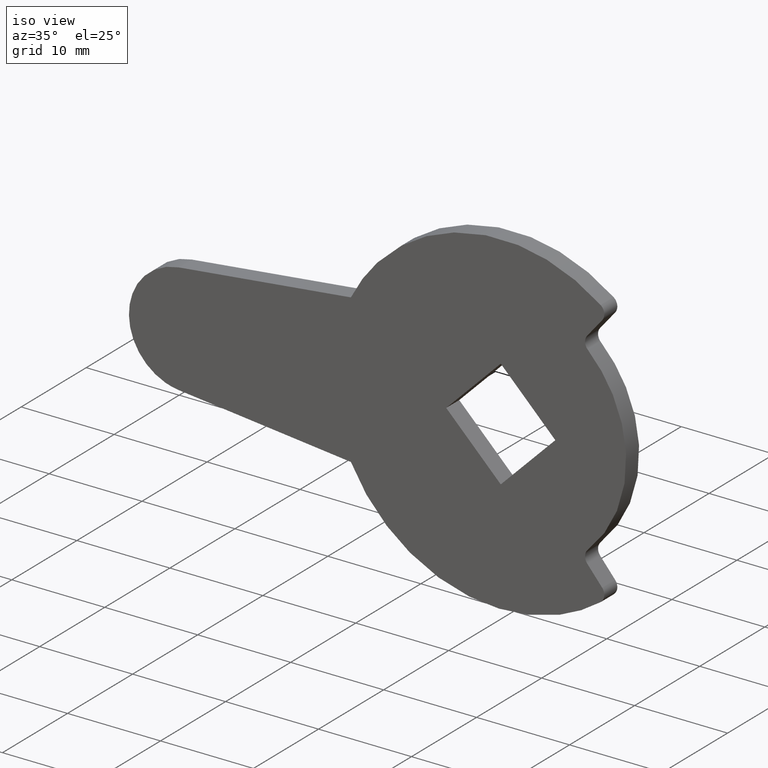
[diagram: clean part render]
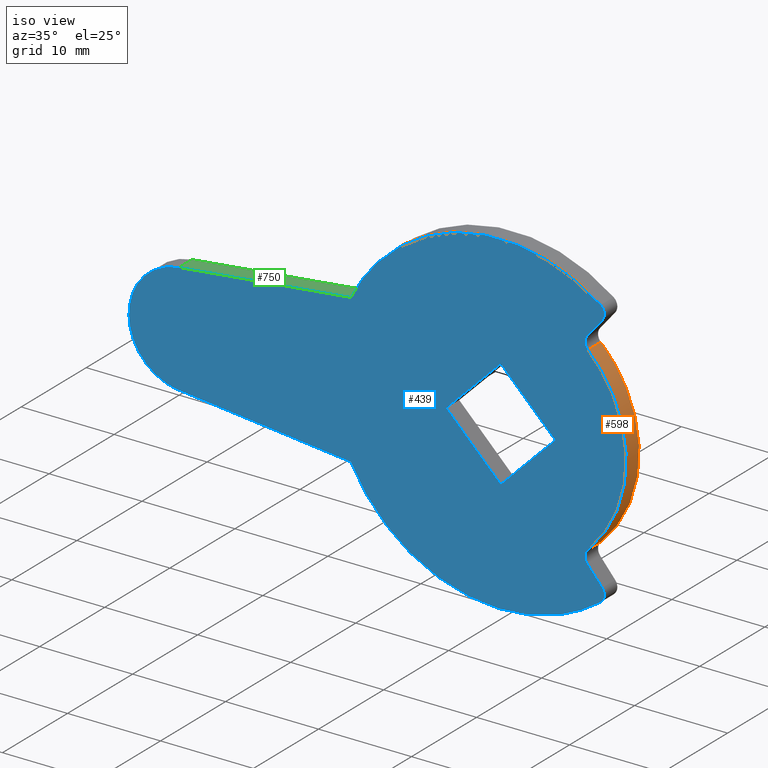
[diagram: same view with three faces highlighted in distinct colors, each labeled with its STEP entity id]
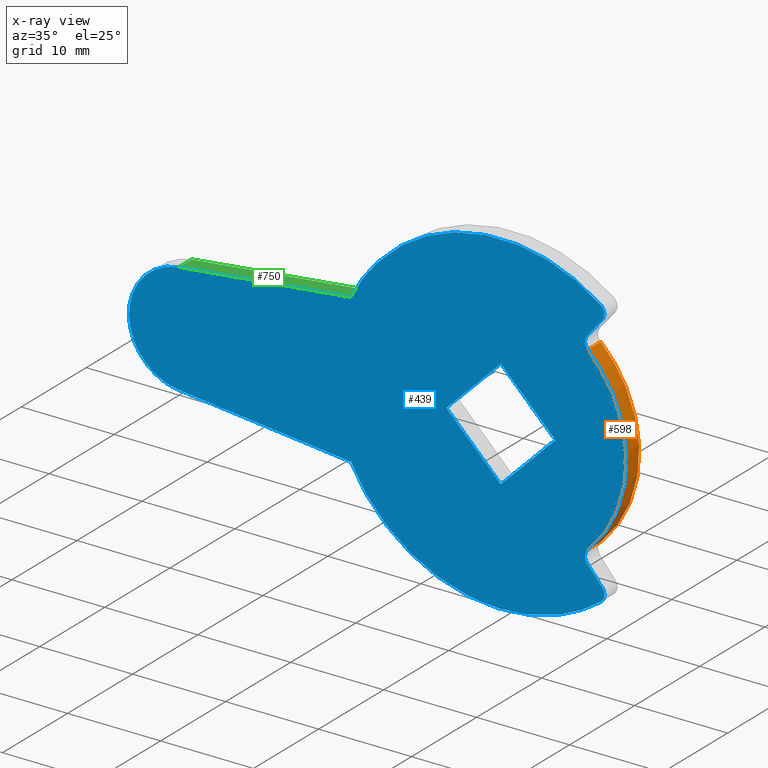
[diagram: x-ray of the same camera — body ghosted, the three highlighted faces saturated]
A machine part, iso view with three faces highlighted in distinct colors.
The next image is the same camera in x-ray (body ghosted, the three faces saturated) — at least one of them is partly hidden behind the body in this view.
Their STEP definitions:

[orange] entity #598 — the highlighted face is a freeform B-spline surface patch.
#92=CARTESIAN_POINT('',(9.370201414459581,0.0,9.718512161401019));
#93=VERTEX_POINT('',#92);
#107=CARTESIAN_POINT('',(9.370232998813620,0.0,-9.718481708829620));
#108=VERTEX_POINT('',#107);
#109=CARTESIAN_POINT('',(9.370232998813620,0.0,-9.718481708829620));
#110=CARTESIAN_POINT('',(13.500002456554789,0.0,-5.736679563119537));
#111=CARTESIAN_POINT('',(13.499993134639389,0.0,0.000021937009817));
#112=CARTESIAN_POINT('',(13.499983812723983,0.0,5.736723437139174));
#113=CARTESIAN_POINT('',(9.370201414459583,0.0,9.718512161401019));
#121=(BOUNDED_CURVE()B_SPLINE_CURVE(2,(#109,#110,#111,#112,#113),.UNSPECIFIED.,.F.,.U.)B_SPLINE_CURVE_WITH_KNOTS((3,2,3),(0.0,0.500000000000000,1.0),.UNSPECIFIED.)CURVE()GEOMETRIC_REPRESENTATION_ITEM()RATIONAL_B_SPLINE_CURVE((1.0,0.920350869292249,1.0,0.920350869292249,1.0))REPRESENTATION_ITEM(''));
#122=EDGE_CURVE('',#108,#93,#121,.T.);
#338=CARTESIAN_POINT('',(9.370232998813620,-2.0,-9.718481708829620));
#339=VERTEX_POINT('',#338);
#353=CARTESIAN_POINT('',(9.370201414459581,-2.0,9.718512161401019));
#354=VERTEX_POINT('',#353);
#355=CARTESIAN_POINT('',(9.370232998813620,-2.0,-9.718481708829620));
#356=CARTESIAN_POINT('',(13.500002456554789,-2.000000000000000,-5.736679563119537));
#357=CARTESIAN_POINT('',(13.499993134639389,-2.0,0.000021937009817));
#358=CARTESIAN_POINT('',(13.499983812723983,-2.000000000000000,5.736723437139174));
#359=CARTESIAN_POINT('',(9.370201414459583,-2.0,9.718512161401019));
#367=(BOUNDED_CURVE()B_SPLINE_CURVE(2,(#355,#356,#357,#358,#359),.UNSPECIFIED.,.F.,.U.)B_SPLINE_CURVE_WITH_KNOTS((3,2,3),(0.0,0.500000000000000,1.0),.UNSPECIFIED.)CURVE()GEOMETRIC_REPRESENTATION_ITEM()RATIONAL_B_SPLINE_CURVE((1.0,0.920350869292249,1.0,0.920350869292249,1.0))REPRESENTATION_ITEM(''));
#368=EDGE_CURVE('',#339,#354,#367,.T.);
#566=CARTESIAN_POINT('',(9.370201414459581,-2.0,9.718512161401019));
#567=CARTESIAN_POINT('',(9.370201414459581,0.0,9.718512161401019));
#568=QUASI_UNIFORM_CURVE('',1,(#566,#567),.UNSPECIFIED.,.F.,.U.);
#569=EDGE_CURVE('',#354,#93,#568,.T.);
#574=CARTESIAN_POINT('',(9.112621846623794,-2.050000000000000,-9.960436605654859));
#575=CARTESIAN_POINT('',(9.112621846623794,0.051250000000000,-9.960436605654859));
#576=CARTESIAN_POINT('',(20.370847427688101,-2.050000000000000,0.339555041069911));
#577=CARTESIAN_POINT('',(20.370847427688101,0.051250000000000,0.339555041069911));
#578=CARTESIAN_POINT('',(8.775597797322332,-2.050000000000000,10.258610296800329));
#579=CARTESIAN_POINT('',(8.775597797322332,0.051250000000000,10.258610296800329));
#587=(BOUNDED_SURFACE()B_SPLINE_SURFACE(1,2,((#574,#576,#578),(#575,#577,#579)),.UNSPECIFIED.,.F.,.F.,.U.)B_SPLINE_SURFACE_WITH_KNOTS((2,2),(3,3),(0.0,2.101250000000000),(0.0,24.325287783755950),.UNSPECIFIED.)GEOMETRIC_REPRESENTATION_ITEM()RATIONAL_B_SPLINE_SURFACE(((1.0,0.662620048215737,1.0),(1.0,0.662620048215737,1.0)))REPRESENTATION_ITEM('')SURFACE());
#588=ORIENTED_EDGE('',*,*,#122,.T.);
#589=ORIENTED_EDGE('',*,*,#569,.F.);
#590=ORIENTED_EDGE('',*,*,#368,.F.);
#591=CARTESIAN_POINT('',(9.370232998813620,-2.0,-9.718481708829620));
#592=CARTESIAN_POINT('',(9.370232998813620,0.0,-9.718481708829620));
#593=QUASI_UNIFORM_CURVE('',1,(#591,#592),.UNSPECIFIED.,.F.,.U.);
#594=EDGE_CURVE('',#339,#108,#593,.T.);
#595=ORIENTED_EDGE('',*,*,#594,.T.);
#596=EDGE_LOOP('',(#588,#589,#590,#595));
#597=FACE_OUTER_BOUND('',#596,.T.);
#598=ADVANCED_FACE('',(#597),#587,.T.);

[blue] entity #439 — the highlighted face is a freeform B-spline surface patch.
#242=CARTESIAN_POINT('',(-42.672116572253323,-2.0,19.798160962117120));
#243=CARTESIAN_POINT('',(16.172309228567340,-2.0,19.798160962117120));
#244=CARTESIAN_POINT('',(-42.672116572253323,-2.0,-19.798180562017890));
#245=CARTESIAN_POINT('',(16.172309228567340,-2.0,-19.798180562017890));
#246=B_SPLINE_SURFACE_WITH_KNOTS('',1,1,((#242,#244),(#243,#245)),.UNSPECIFIED.,.F.,.F.,.U.,(2,2),(2,2),(0.0,58.844425800820659),(0.0,39.596341524135013),.UNSPECIFIED.);
#247=CARTESIAN_POINT('',(10.739072857427660,-2.0,14.445526761286960));
#248=VERTEX_POINT('',#247);
#249=CARTESIAN_POINT('',(-16.124516390019298,-2.0,7.999998199249760));
#250=VERTEX_POINT('',#249);
#251=CARTESIAN_POINT('',(10.739072857427670,-2.0,14.445526761286979));
#252=CARTESIAN_POINT('',(3.984586888391954,-2.000000000000000,19.466919151968000));
#253=CARTESIAN_POINT('',(-4.199630048120304,-2.0,17.503235016676509));
#254=CARTESIAN_POINT('',(-12.383846984632562,-2.000000000000000,15.539550881385031));
#255=CARTESIAN_POINT('',(-16.124516390019298,-2.0,7.999998199249757));
#263=(BOUNDED_CURVE()B_SPLINE_CURVE(2,(#251,#252,#253,#254,#255),.UNSPECIFIED.,.F.,.U.)B_SPLINE_CURVE_WITH_KNOTS((3,2,3),(0.0,0.500000000000000,1.0),.UNSPECIFIED.)CURVE()GEOMETRIC_REPRESENTATION_ITEM()RATIONAL_B_SPLINE_CURVE((1.0,0.905864952288434,1.0,0.905864952288434,1.0))REPRESENTATION_ITEM(''));
#264=EDGE_CURVE('',#248,#250,#263,.T.);
#265=ORIENTED_EDGE('',*,*,#264,.T.);
#266=CARTESIAN_POINT('',(-34.633145301685097,-2.0,5.966479173585831));
#267=VERTEX_POINT('',#266);
#268=CARTESIAN_POINT('',(-16.124516390019298,-2.0,7.999998199249760));
#269=CARTESIAN_POINT('',(-34.633145301685097,-2.0,5.966479173585831));
#270=QUASI_UNIFORM_CURVE('',1,(#268,#269),.UNSPECIFIED.,.F.,.U.);
#271=EDGE_CURVE('',#250,#267,#270,.T.);
#272=ORIENTED_EDGE('',*,*,#271,.T.);
#273=CARTESIAN_POINT('',(-34.633145301704651,-2.0,-5.966479173583750));
#274=VERTEX_POINT('',#273);
#275=CARTESIAN_POINT('',(-34.633145301685097,-2.0,5.966479173585825));
#276=CARTESIAN_POINT('',(-39.999799999991154,-2.0,5.396805595575883));
#277=CARTESIAN_POINT('',(-39.999799999999993,-2.0,9.828506E-012));
#278=CARTESIAN_POINT('',(-39.999800000008840,-2.0,-5.396805595556225));
#279=CARTESIAN_POINT('',(-34.633145301704651,-2.0,-5.966479173583751));
#287=(BOUNDED_CURVE()B_SPLINE_CURVE(2,(#275,#276,#277,#278,#279),.UNSPECIFIED.,.F.,.U.)B_SPLINE_CURVE_WITH_KNOTS((3,2,3),(0.0,0.500000000000000,1.0),.UNSPECIFIED.)CURVE()GEOMETRIC_REPRESENTATION_ITEM()RATIONAL_B_SPLINE_CURVE((1.0,0.743490938170224,1.0,0.743490938170224,1.0))REPRESENTATION_ITEM(''));
#288=EDGE_CURVE('',#267,#274,#287,.T.);
#289=ORIENTED_EDGE('',*,*,#288,.T.);
#290=CARTESIAN_POINT('',(-16.124516390019249,-2.0,-7.999998199249870));
#291=VERTEX_POINT('',#290);
#292=CARTESIAN_POINT('',(-34.633145301704651,-2.0,-5.966479173583750));
#293=CARTESIAN_POINT('',(-16.124516390019249,-2.0,-7.999998199249870));
#294=QUASI_UNIFORM_CURVE('',1,(#292,#293),.UNSPECIFIED.,.F.,.U.);
#295=EDGE_CURVE('',#274,#291,#294,.T.);
#296=ORIENTED_EDGE('',*,*,#295,.T.);
#297=CARTESIAN_POINT('',(10.739112776660720,-2.0,-14.445497084531439));
#298=VERTEX_POINT('',#297);
#299=CARTESIAN_POINT('',(-16.124516390019220,-2.0,-7.999998199249855));
#300=CARTESIAN_POINT('',(-12.383854566696790,-2.000000000000000,-15.539582422374766));
#301=CARTESIAN_POINT('',(-4.199610718877521,-2.0,-17.503261055320671));
#302=CARTESIAN_POINT('',(3.984633128941750,-2.000000000000000,-19.466939688266574));
#303=CARTESIAN_POINT('',(10.739112776660701,-2.0,-14.445497084531430));
#311=(BOUNDED_CURVE()B_SPLINE_CURVE(2,(#299,#300,#301,#302,#303),.UNSPECIFIED.,.F.,.U.)B_SPLINE_CURVE_WITH_KNOTS((3,2,3),(0.0,0.500000000000000,1.0),.UNSPECIFIED.)CURVE()GEOMETRIC_REPRESENTATION_ITEM()RATIONAL_B_SPLINE_CURVE((1.0,0.905864136016763,1.0,0.905864136016763,1.0))REPRESENTATION_ITEM(''));
#312=EDGE_CURVE('',#291,#298,#311,.T.);
#313=ORIENTED_EDGE('',*,*,#312,.T.);
#314=CARTESIAN_POINT('',(10.903888410541020,-2.0,-12.994704011817319));
#315=VERTEX_POINT('',#314);
#316=CARTESIAN_POINT('',(10.739112776660720,-2.0,-14.445497084531430));
#317=CARTESIAN_POINT('',(11.087159702480234,-2.000000000000000,-14.186750629947127));
#318=CARTESIAN_POINT('',(11.136101848851300,-2.0,-13.755831778374180));
#319=CARTESIAN_POINT('',(11.185043995222372,-2.000000000000000,-13.324912926801224));
#320=CARTESIAN_POINT('',(10.903888410541020,-2.0,-12.994704011817319));
#328=(BOUNDED_CURVE()B_SPLINE_CURVE(2,(#316,#317,#318,#319,#320),.UNSPECIFIED.,.F.,.U.)B_SPLINE_CURVE_WITH_KNOTS((3,2,3),(0.0,0.500000000000000,1.0),.UNSPECIFIED.)CURVE()GEOMETRIC_REPRESENTATION_ITEM()RATIONAL_B_SPLINE_CURVE((1.0,0.917434344496949,1.0,0.917434344496949,1.0))REPRESENTATION_ITEM(''));
#329=EDGE_CURVE('',#298,#315,#328,.T.);
#330=ORIENTED_EDGE('',*,*,#329,.T.);
#331=CARTESIAN_POINT('',(9.302911589452830,-2.0,-11.086695988175499));
#332=VERTEX_POINT('',#331);
#333=CARTESIAN_POINT('',(10.903888410541020,-2.0,-12.994704011817319));
#334=CARTESIAN_POINT('',(9.302911589452830,-2.0,-11.086695988175499));
#335=QUASI_UNIFORM_CURVE('',1,(#333,#334),.UNSPECIFIED.,.F.,.U.);
#336=EDGE_CURVE('',#315,#332,#335,.T.);
#337=ORIENTED_EDGE('',*,*,#336,.T.);
#338=CARTESIAN_POINT('',(9.370232998813620,-2.0,-9.718481708829620));
#339=VERTEX_POINT('',#338);
#340=CARTESIAN_POINT('',(9.370232998813631,-2.0,-9.718481708829630));
#341=CARTESIAN_POINT('',(8.693520258589841,-2.000000000000000,-10.370948212983244));
#342=CARTESIAN_POINT('',(9.302911589452831,-2.0,-11.086695988175499));
#350=(BOUNDED_CURVE()B_SPLINE_CURVE(2,(#340,#341,#342),.UNSPECIFIED.,.F.,.U.)CURVE()GEOMETRIC_REPRESENTATION_ITEM()QUASI_UNIFORM_CURVE()RATIONAL_B_SPLINE_CURVE((1.0,0.728632280260525,1.0))REPRESENTATION_ITEM(''));
#351=EDGE_CURVE('',#339,#332,#350,.T.);
#352=ORIENTED_EDGE('',*,*,#351,.F.);
#353=CARTESIAN_POINT('',(9.370201414459581,-2.0,9.718512161401019));
#354=VERTEX_POINT('',#353);
#355=CARTESIAN_POINT('',(9.370232998813620,-2.0,-9.718481708829620));
#356=CARTESIAN_POINT('',(13.500002456554789,-2.000000000000000,-5.736679563119537));
#357=CARTESIAN_POINT('',(13.499993134639389,-2.0,0.000021937009817));
#358=CARTESIAN_POINT('',(13.499983812723983,-2.000000000000000,5.736723437139174));
#359=CARTESIAN_POINT('',(9.370201414459583,-2.0,9.718512161401019));
#367=(BOUNDED_CURVE()B_SPLINE_CURVE(2,(#355,#356,#357,#358,#359),.UNSPECIFIED.,.F.,.U.)B_SPLINE_CURVE_WITH_KNOTS((3,2,3),(0.0,0.500000000000000,1.0),.UNSPECIFIED.)CURVE()GEOMETRIC_REPRESENTATION_ITEM()RATIONAL_B_SPLINE_CURVE((1.0,0.920350869292249,1.0,0.920350869292249,1.0))REPRESENTATION_ITEM(''));
#368=EDGE_CURVE('',#339,#354,#367,.T.);
#369=ORIENTED_EDGE('',*,*,#368,.T.);
#370=CARTESIAN_POINT('',(9.302911589465209,-2.0,11.086695988190041));
#371=VERTEX_POINT('',#370);
#372=CARTESIAN_POINT('',(9.302911589465223,-2.0,11.086695988190030));
#373=CARTESIAN_POINT('',(8.693486324254092,-2.000000000000000,10.370976687546957));
#374=CARTESIAN_POINT('',(9.370201414459581,-2.0,9.718512161401019));
#382=(BOUNDED_CURVE()B_SPLINE_CURVE(2,(#372,#373,#374),.UNSPECIFIED.,.F.,.U.)CURVE()GEOMETRIC_REPRESENTATION_ITEM()QUASI_UNIFORM_CURVE()RATIONAL_B_SPLINE_CURVE((1.0,0.728615029616869,1.0))REPRESENTATION_ITEM(''));
#383=EDGE_CURVE('',#371,#354,#382,.T.);
#384=ORIENTED_EDGE('',*,*,#383,.F.);
#385=CARTESIAN_POINT('',(10.903888410533700,-2.0,12.994704011808579));
#386=VERTEX_POINT('',#385);
#387=CARTESIAN_POINT('',(9.302911589465209,-2.0,11.086695988190041));
#388=CARTESIAN_POINT('',(10.903888410533700,-2.0,12.994704011808579));
#389=QUASI_UNIFORM_CURVE('',1,(#387,#388),.UNSPECIFIED.,.F.,.U.);
#390=EDGE_CURVE('',#371,#386,#389,.T.);
#391=ORIENTED_EDGE('',*,*,#390,.T.);
#392=CARTESIAN_POINT('',(10.903888410533691,-2.0,12.994704011808590));
#393=CARTESIAN_POINT('',(11.185033449869259,-2.000000000000000,13.324930315200996));
#394=CARTESIAN_POINT('',(11.136079863433119,-2.0,13.755854311945500));
#395=CARTESIAN_POINT('',(11.087126276996973,-2.000000000000000,14.186778308690002));
#396=CARTESIAN_POINT('',(10.739072857427660,-2.0,14.445526761286960));
#404=(BOUNDED_CURVE()B_SPLINE_CURVE(2,(#392,#393,#394,#395,#396),.UNSPECIFIED.,.F.,.U.)B_SPLINE_CURVE_WITH_KNOTS((3,2,3),(0.0,0.500000000000000,1.0),.UNSPECIFIED.)CURVE()GEOMETRIC_REPRESENTATION_ITEM()RATIONAL_B_SPLINE_CURVE((1.0,0.917438250668628,1.0,0.917438250668628,1.0))REPRESENTATION_ITEM(''));
#405=EDGE_CURVE('',#386,#248,#404,.T.);
#406=ORIENTED_EDGE('',*,*,#405,.T.);
#407=EDGE_LOOP('',(#265,#272,#289,#296,#313,#330,#337,#352,#369,#384,#391,#406));
#408=FACE_OUTER_BOUND('',#407,.T.);
#409=CARTESIAN_POINT('',(0.000100000000018,-2.0,5.868999999999900));
#410=VERTEX_POINT('',#409);
#411=CARTESIAN_POINT('',(-5.868900000000000,-2.0,0.0));
#412=VERTEX_POINT('',#411);
#413=CARTESIAN_POINT('',(0.000100000000018,-2.0,5.868999999999900));
#414=CARTESIAN_POINT('',(-5.868900000000000,-2.0,0.0));
#415=QUASI_UNIFORM_CURVE('',1,(#413,#414),.UNSPECIFIED.,.F.,.U.);
#416=EDGE_CURVE('',#410,#412,#415,.T.);
#417=ORIENTED_EDGE('',*,*,#416,.F.);
#418=CARTESIAN_POINT('',(5.869000000000000,-2.0,0.0));
#419=VERTEX_POINT('',#418);
#420=CARTESIAN_POINT('',(5.869000000000000,-2.0,0.0));
#421=CARTESIAN_POINT('',(0.000100000000018,-2.0,5.868999999999900));
#422=QUASI_UNIFORM_CURVE('',1,(#420,#421),.UNSPECIFIED.,.F.,.U.);
#423=EDGE_CURVE('',#419,#410,#422,.T.);
#424=ORIENTED_EDGE('',*,*,#423,.F.);
#425=CARTESIAN_POINT('',(0.000100000000018,-2.0,-5.869000000000000));
#426=VERTEX_POINT('',#425);
#427=CARTESIAN_POINT('',(0.000100000000018,-2.0,-5.869000000000000));
#428=CARTESIAN_POINT('',(5.869000000000000,-2.0,0.0));
#429=QUASI_UNIFORM_CURVE('',1,(#427,#428),.UNSPECIFIED.,.F.,.U.);
#430=EDGE_CURVE('',#426,#419,#429,.T.);
#431=ORIENTED_EDGE('',*,*,#430,.F.);
#432=CARTESIAN_POINT('',(-5.868900000000000,-2.0,0.0));
#433=CARTESIAN_POINT('',(0.000100000000018,-2.0,-5.869000000000000));
#434=QUASI_UNIFORM_CURVE('',1,(#432,#433),.UNSPECIFIED.,.F.,.U.);
#435=EDGE_CURVE('',#412,#426,#434,.T.);
#436=ORIENTED_EDGE('',*,*,#435,.F.);
#437=EDGE_LOOP('',(#417,#424,#431,#436));
#438=FACE_BOUND('',#437,.T.);
#439=ADVANCED_FACE('',(#408,#438),#246,.F.);

[green] entity #750 — the highlighted face is a freeform B-spline surface patch.
#51=CARTESIAN_POINT('',(-16.124516390019298,0.0,7.999998199249760));
#52=VERTEX_POINT('',#51);
#187=CARTESIAN_POINT('',(-34.633145301685097,0.0,5.966479173585831));
#188=VERTEX_POINT('',#187);
#204=CARTESIAN_POINT('',(-16.124516390019298,0.0,7.999998199249760));
#205=CARTESIAN_POINT('',(-34.633145301685097,0.0,5.966479173585831));
#206=QUASI_UNIFORM_CURVE('',1,(#204,#205),.UNSPECIFIED.,.F.,.U.);
#207=EDGE_CURVE('',#52,#188,#206,.T.);
#249=CARTESIAN_POINT('',(-16.124516390019298,-2.0,7.999998199249760));
#250=VERTEX_POINT('',#249);
#266=CARTESIAN_POINT('',(-34.633145301685097,-2.0,5.966479173585831));
#267=VERTEX_POINT('',#266);
#268=CARTESIAN_POINT('',(-16.124516390019298,-2.0,7.999998199249760));
#269=CARTESIAN_POINT('',(-34.633145301685097,-2.0,5.966479173585831));
#270=QUASI_UNIFORM_CURVE('',1,(#268,#269),.UNSPECIFIED.,.F.,.U.);
#271=EDGE_CURVE('',#250,#267,#270,.T.);
#727=CARTESIAN_POINT('',(-34.633145301685097,-2.0,5.966479173585831));
#728=CARTESIAN_POINT('',(-34.633145301685097,0.0,5.966479173585831));
#729=QUASI_UNIFORM_CURVE('',1,(#727,#728),.UNSPECIFIED.,.F.,.U.);
#730=EDGE_CURVE('',#267,#188,#729,.T.);
#735=CARTESIAN_POINT('',(-15.200009609151900,-2.099899996123612,8.101572558821271));
#736=CARTESIAN_POINT('',(-35.557650427752122,-2.099899996123612,5.864904995825086));
#737=CARTESIAN_POINT('',(-15.200009609151900,0.099900049767792,8.101572558821271));
#738=CARTESIAN_POINT('',(-35.557650427752122,0.099900049767792,5.864904995825086));
#739=B_SPLINE_SURFACE_WITH_KNOTS('',1,1,((#735,#737),(#736,#738)),.UNSPECIFIED.,.F.,.F.,.U.,(2,2),(2,2),(0.0,20.480142125642029),(0.0,2.199800045891404),.UNSPECIFIED.);
#740=ORIENTED_EDGE('',*,*,#207,.T.);
#741=ORIENTED_EDGE('',*,*,#730,.F.);
#742=ORIENTED_EDGE('',*,*,#271,.F.);
#743=CARTESIAN_POINT('',(-16.124516390019298,-2.0,7.999998199249760));
#744=CARTESIAN_POINT('',(-16.124516390019298,0.0,7.999998199249760));
#745=QUASI_UNIFORM_CURVE('',1,(#743,#744),.UNSPECIFIED.,.F.,.U.);
#746=EDGE_CURVE('',#250,#52,#745,.T.);
#747=ORIENTED_EDGE('',*,*,#746,.T.);
#748=EDGE_LOOP('',(#740,#741,#742,#747));
#749=FACE_OUTER_BOUND('',#748,.T.);
#750=ADVANCED_FACE('',(#749),#739,.F.);